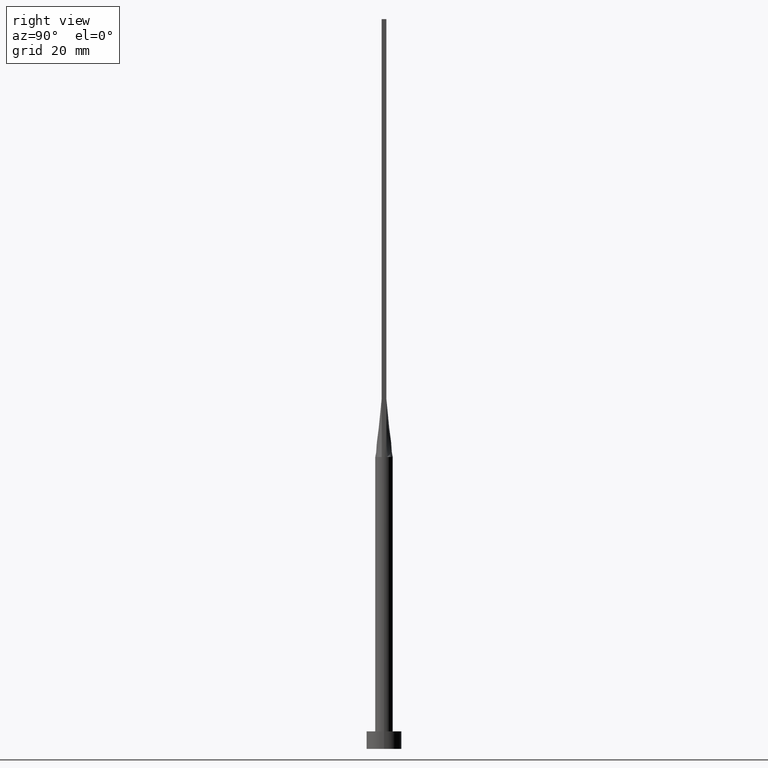
[diagram: clean part render]
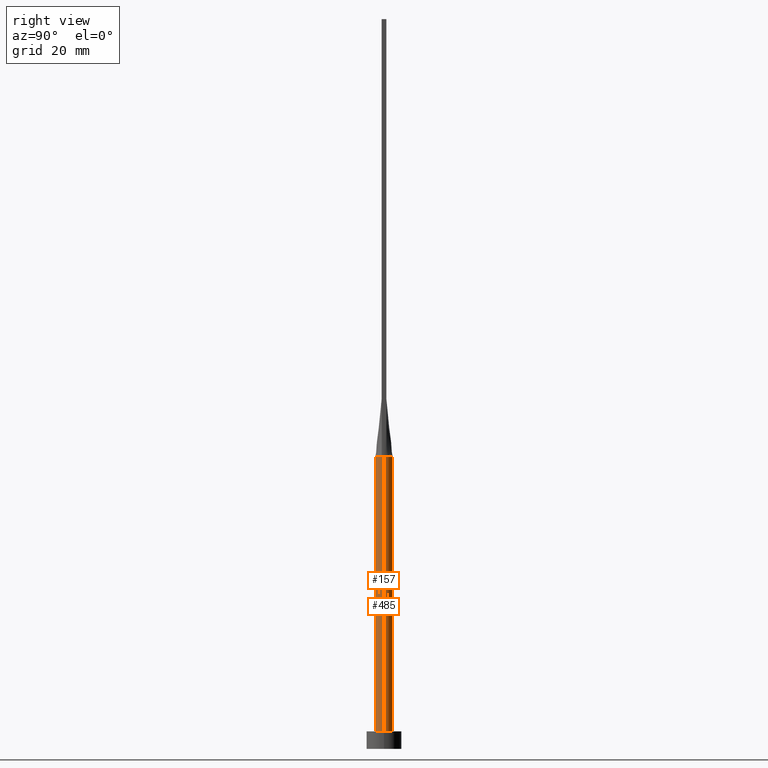
[diagram: same view with one multi-face feature highlighted, each face labeled with its STEP entity id]
A machine part, right view. The highlighted faces form ONE feature: a constant-radius fillet chain: 2 tangent blend faces with common blend radius 1.5 mm. The faces share edges in the B-rep.
Their STEP definitions:
[1] entity #485 (Cylinder):
#22 = VERTEX_POINT ( 'NONE', #225 ) ;
#32 = FACE_OUTER_BOUND ( 'NONE', #454, .T. ) ;
#35 = CARTESIAN_POINT ( 'NONE',  ( 1.442362338805188937, 0.4121038472597355895, 50.00000000000000000 ) ) ;
#39 = DIRECTION ( 'NONE',  ( -0.000000000000000000, -0.000000000000000000, -1.000000000000000000 ) ) ;
#44 = CARTESIAN_POINT ( 'NONE',  ( 1.114527776139990101, 1.017390422009413431, 50.00000000000000000 ) ) ;
#66 = CARTESIAN_POINT ( 'NONE',  ( 0.8665786268839186235, 1.235433898681765008, 50.00000000000000000 ) ) ;
#67 = LINE ( 'NONE', #310, #398 ) ;
#70 = CARTESIAN_POINT ( 'NONE',  ( -1.114527776139989212, 1.017390422009414319, 50.00000000000000711 ) ) ;
#81 = EDGE_CURVE ( 'NONE', #570, #22, #67, .T. ) ;
#88 = DIRECTION ( 'NONE',  ( 0.000000000000000000, 0.000000000000000000, 1.000000000000000000 ) ) ;
#98 = ORIENTED_EDGE ( 'NONE', *, *, #410, .F. ) ;
#99 = EDGE_CURVE ( 'NONE', #543, #116, #134, .T. ) ;
#114 = CARTESIAN_POINT ( 'NONE',  ( -1.442387148345315895, 0.4121110244020492197, 50.00000000000000000 ) ) ;
#116 = VERTEX_POINT ( 'NONE', #361 ) ;
#118 = CARTESIAN_POINT ( 'NONE',  ( 0.000000000000000000, 0.000000000000000000, 50.00000000000000000 ) ) ;
#125 = DIRECTION ( 'NONE',  ( -1.000000000000000000, 0.000000000000000000, 0.000000000000000000 ) ) ;
#126 = DIRECTION ( 'NONE',  ( -0.000000000000000000, -0.000000000000000000, -1.000000000000000000 ) ) ;
#129 = CARTESIAN_POINT ( 'NONE',  ( -1.442387148345315895, 0.4121110244020492197, 50.00000000000000000 ) ) ;
#134 = CIRCLE ( 'NONE', #459, 1.500000000000000222 ) ;
#146 = CIRCLE ( 'NONE', #360, 1.500000000000000222 ) ;
#161 = DIRECTION ( 'NONE',  ( 1.000000000000000000, 0.000000000000000000, 0.000000000000000000 ) ) ;
#163 = CARTESIAN_POINT ( 'NONE',  ( 0.1885753531885901724, 1.500000000000000666, 50.00000000000000711 ) ) ;
#167 = CARTESIAN_POINT ( 'NONE',  ( 0.000000000000000000, 0.000000000000000000, 3.000000000000000000 ) ) ;
#170 = VERTEX_POINT ( 'NONE', #364 ) ;
#171 = CARTESIAN_POINT ( 'NONE',  ( -1.500000000000000222, 0.000000000000000000, 50.00000000000000000 ) ) ;
#172 = ORIENTED_EDGE ( 'NONE', *, *, #572, .F. ) ;
#217 = CARTESIAN_POINT ( 'NONE',  ( 0.7158926189626808601, 1.330660769095147966, 49.99999999999999289 ) ) ;
#225 = CARTESIAN_POINT ( 'NONE',  ( 1.500000000000000222, 1.836970198721030181E-16, 3.000000000000000000 ) ) ;
#227 = CARTESIAN_POINT ( 'NONE',  ( -1.409267053536706671, 0.5276477295819163027, 50.00000000000000711 ) ) ;
#233 = CARTESIAN_POINT ( 'NONE',  ( 0.000000000000000000, 0.000000000000000000, 50.00000000000000000 ) ) ;
#242 = AXIS2_PLACEMENT_3D ( 'NONE', #118, #405, #161 ) ;
#253 = VERTEX_POINT ( 'NONE', #35 ) ;
#255 = CARTESIAN_POINT ( 'NONE',  ( -1.212111761082482975, 0.8950936653899578266, 50.00000000000000000 ) ) ;
#270 = CARTESIAN_POINT ( 'NONE',  ( 0.000000000000000000, 0.000000000000000000, 50.00000000000000000 ) ) ;
#273 = ORIENTED_EDGE ( 'NONE', *, *, #99, .F. ) ;
#304 = CARTESIAN_POINT ( 'NONE',  ( -0.7158926189626803049, 1.330660769095148410, 50.00000000000000000 ) ) ;
#310 = CARTESIAN_POINT ( 'NONE',  ( 1.500000000000000222, 1.836970198721030181E-16, 50.00000000000000000 ) ) ;
#317 = CARTESIAN_POINT ( 'NONE',  ( 1.409267053536706671, 0.5276477295819161917, 50.00000000000001421 ) ) ;
#336 = DIRECTION ( 'NONE',  ( 1.000000000000000000, 0.000000000000000000, 0.000000000000000000 ) ) ;
#337 = VECTOR ( 'NONE', #346, 1000.000000000000000 ) ;
#339 = CARTESIAN_POINT ( 'NONE',  ( -1.359280768448767329, 0.6502025712814717417, 50.00000000000000711 ) ) ;
#341 = CARTESIAN_POINT ( 'NONE',  ( -0.3767059690781846548, 1.463302066271692015, 50.00000000000000000 ) ) ;
#343 = DIRECTION ( 'NONE',  ( 0.000000000000000000, 0.000000000000000000, 1.000000000000000000 ) ) ;
#344 = CARTESIAN_POINT ( 'NONE',  ( 1.500000000000000000, -9.795443734464536283E-18, 50.00000000000000000 ) ) ;
#346 = DIRECTION ( 'NONE',  ( -0.000000000000000000, -0.000000000000000000, -1.000000000000000000 ) ) ;
#347 = AXIS2_PLACEMENT_3D ( 'NONE', #270, #39, #125 ) ;
#350 = EDGE_CURVE ( 'NONE', #22, #170, #146, .T. ) ;
#360 = AXIS2_PLACEMENT_3D ( 'NONE', #167, #343, #336 ) ;
#361 = CARTESIAN_POINT ( 'NONE',  ( -1.500000000000000222, 8.735352324927310277E-17, 50.00000000000000000 ) ) ;
#364 = CARTESIAN_POINT ( 'NONE',  ( -1.500000000000000222, 0.000000000000000000, 3.000000000000000000 ) ) ;
#390 = ORIENTED_EDGE ( 'NONE', *, *, #561, .F. ) ;
#398 = VECTOR ( 'NONE', #126, 1000.000000000000000 ) ;
#405 = DIRECTION ( 'NONE',  ( 0.000000000000000000, 0.000000000000000000, 1.000000000000000000 ) ) ;
#410 = EDGE_CURVE ( 'NONE', #116, #170, #535, .T. ) ;
#447 = CYLINDRICAL_SURFACE ( 'NONE', #347, 1.500000000000000222 ) ;
#449 = DIRECTION ( 'NONE',  ( 1.000000000000000000, 0.000000000000000000, 0.000000000000000000 ) ) ;
#454 = EDGE_LOOP ( 'NONE', ( #172, #472, #490, #98, #273, #390 ) ) ;
#459 = AXIS2_PLACEMENT_3D ( 'NONE', #233, #88, #449 ) ;
#467 = CIRCLE ( 'NONE', #242, 1.500000000000000222 ) ;
#470 = CARTESIAN_POINT ( 'NONE',  ( 1.212111761082483197, 0.8950936653899574935, 50.00000000000000000 ) ) ;
#472 = ORIENTED_EDGE ( 'NONE', *, *, #81, .T. ) ;
#483 = CARTESIAN_POINT ( 'NONE',  ( 0.3767059690781852654, 1.463302066271692015, 50.00000000000001421 ) ) ;
#485 = ADVANCED_FACE ( 'NONE', ( #32 ), #447, .T. ) ;
#490 = ORIENTED_EDGE ( 'NONE', *, *, #350, .T. ) ;
#492 = CARTESIAN_POINT ( 'NONE',  ( 1.359280768448766663, 0.6502025712814714087, 50.00000000000000000 ) ) ;
#522 = CARTESIAN_POINT ( 'NONE',  ( -0.8665786268839184014, 1.235433898681765896, 50.00000000000001421 ) ) ;
#524 = B_SPLINE_CURVE_WITH_KNOTS ( 'NONE', 3,
 ( #568, #317, #492, #470, #44, #66, #217, #483, #163, #528, #341, #304, #522, #70, #255, #339, #227, #114 ),
 .UNSPECIFIED., .F., .F.,
 ( 4, 2, 2, 2, 2, 2, 2, 2, 4 ),
 ( 0.000000000000000000, 0.1250000000000000833, 0.2500000000000001665, 0.3750000000000001110, 0.5000000000000001110, 0.6250000000000002220, 0.7500000000000001110, 0.8750000000000001110, 1.000000000000000000 ),
 .UNSPECIFIED. ) ;
#528 = CARTESIAN_POINT ( 'NONE',  ( -0.1885753531885899226, 1.500000000000000888, 50.00000000000001421 ) ) ;
#535 = LINE ( 'NONE', #171, #337 ) ;
#543 = VERTEX_POINT ( 'NONE', #129 ) ;
#561 = EDGE_CURVE ( 'NONE', #253, #543, #524, .T. ) ;
#568 = CARTESIAN_POINT ( 'NONE',  ( 1.442362338805188937, 0.4121038472597355895, 50.00000000000000000 ) ) ;
#570 = VERTEX_POINT ( 'NONE', #344 ) ;
#572 = EDGE_CURVE ( 'NONE', #570, #253, #467, .T. ) ;
[2] entity #157 (Cylinder):
#18 = AXIS2_PLACEMENT_3D ( 'NONE', #442, #533, #356 ) ;
#22 = VERTEX_POINT ( 'NONE', #225 ) ;
#29 = AXIS2_PLACEMENT_3D ( 'NONE', #560, #207, #63 ) ;
#42 = AXIS2_PLACEMENT_3D ( 'NONE', #451, #190, #203 ) ;
#60 = CARTESIAN_POINT ( 'NONE',  ( 0.000000000000000000, 0.000000000000000000, 3.000000000000000000 ) ) ;
#63 = DIRECTION ( 'NONE',  ( 1.000000000000000000, 0.000000000000000000, 0.000000000000000000 ) ) ;
#67 = LINE ( 'NONE', #310, #398 ) ;
#73 = DIRECTION ( 'NONE',  ( 1.000000000000000000, 0.000000000000000000, 0.000000000000000000 ) ) ;
#81 = EDGE_CURVE ( 'NONE', #570, #22, #67, .T. ) ;
#111 = DIRECTION ( 'NONE',  ( 1.000000000000000000, 5.329070518200751394E-15, 0.000000000000000000 ) ) ;
#116 = VERTEX_POINT ( 'NONE', #361 ) ;
#126 = DIRECTION ( 'NONE',  ( -0.000000000000000000, -0.000000000000000000, -1.000000000000000000 ) ) ;
#145 = ORIENTED_EDGE ( 'NONE', *, *, #292, .F. ) ;
#153 = EDGE_LOOP ( 'NONE', ( #501, #166, #287, #145, #247, #374 ) ) ;
#157 = ADVANCED_FACE ( 'NONE', ( #413 ), #548, .T. ) ;
#166 = ORIENTED_EDGE ( 'NONE', *, *, #496, .F. ) ;
#170 = VERTEX_POINT ( 'NONE', #364 ) ;
#171 = CARTESIAN_POINT ( 'NONE',  ( -1.500000000000000222, 0.000000000000000000, 50.00000000000000000 ) ) ;
#190 = DIRECTION ( 'NONE',  ( -0.000000000000000000, -0.000000000000000000, -1.000000000000000000 ) ) ;
#203 = DIRECTION ( 'NONE',  ( -1.000000000000000000, 0.000000000000000000, 0.000000000000000000 ) ) ;
#207 = DIRECTION ( 'NONE',  ( 0.000000000000000000, 0.000000000000000000, 1.000000000000000000 ) ) ;
#213 = CARTESIAN_POINT ( 'NONE',  ( 0.000000000000000000, 0.000000000000000000, 50.00000000000000000 ) ) ;
#216 = CARTESIAN_POINT ( 'NONE',  ( 1.442393550978850802, -0.4121129214357137083, 50.00000000000000000 ) ) ;
#225 = CARTESIAN_POINT ( 'NONE',  ( 1.500000000000000222, 1.836970198721030181E-16, 3.000000000000000000 ) ) ;
#247 = ORIENTED_EDGE ( 'NONE', *, *, #410, .T. ) ;
#251 = VERTEX_POINT ( 'NONE', #429 ) ;
#258 = CIRCLE ( 'NONE', #328, 1.500000000000000222 ) ;
#282 = EDGE_CURVE ( 'NONE', #170, #22, #258, .T. ) ;
#287 = ORIENTED_EDGE ( 'NONE', *, *, #457, .F. ) ;
#292 = EDGE_CURVE ( 'NONE', #116, #251, #427, .T. ) ;
#309 = VERTEX_POINT ( 'NONE', #216 ) ;
#310 = CARTESIAN_POINT ( 'NONE',  ( 1.500000000000000222, 1.836970198721030181E-16, 50.00000000000000000 ) ) ;
#328 = AXIS2_PLACEMENT_3D ( 'NONE', #60, #563, #73 ) ;
#337 = VECTOR ( 'NONE', #346, 1000.000000000000000 ) ;
#344 = CARTESIAN_POINT ( 'NONE',  ( 1.500000000000000000, -9.795443734464536283E-18, 50.00000000000000000 ) ) ;
#346 = DIRECTION ( 'NONE',  ( -0.000000000000000000, -0.000000000000000000, -1.000000000000000000 ) ) ;
#356 = DIRECTION ( 'NONE',  ( 1.000000000000000000, 0.000000000000000000, 0.000000000000000000 ) ) ;
#361 = CARTESIAN_POINT ( 'NONE',  ( -1.500000000000000222, 8.735352324927310277E-17, 50.00000000000000000 ) ) ;
#364 = CARTESIAN_POINT ( 'NONE',  ( -1.500000000000000222, 0.000000000000000000, 3.000000000000000000 ) ) ;
#374 = ORIENTED_EDGE ( 'NONE', *, *, #282, .T. ) ;
#398 = VECTOR ( 'NONE', #126, 1000.000000000000000 ) ;
#410 = EDGE_CURVE ( 'NONE', #116, #170, #535, .T. ) ;
#413 = FACE_OUTER_BOUND ( 'NONE', #153, .T. ) ;
#427 = CIRCLE ( 'NONE', #29, 1.500000000000000222 ) ;
#429 = CARTESIAN_POINT ( 'NONE',  ( -1.442368678646663405, -0.4121057215347019853, 50.00000000000000000 ) ) ;
#434 = CIRCLE ( 'NONE', #511, 1.500000000000000222 ) ;
#442 = CARTESIAN_POINT ( 'NONE',  ( 0.000000000000000000, 0.000000000000000000, 50.00000000000000000 ) ) ;
#451 = CARTESIAN_POINT ( 'NONE',  ( 0.000000000000000000, 0.000000000000000000, 50.00000000000000000 ) ) ;
#457 = EDGE_CURVE ( 'NONE', #251, #309, #578, .T. ) ;
#476 = DIRECTION ( 'NONE',  ( 0.000000000000000000, 0.000000000000000000, 1.000000000000000000 ) ) ;
#496 = EDGE_CURVE ( 'NONE', #309, #570, #434, .T. ) ;
#501 = ORIENTED_EDGE ( 'NONE', *, *, #81, .F. ) ;
#511 = AXIS2_PLACEMENT_3D ( 'NONE', #213, #476, #111 ) ;
#533 = DIRECTION ( 'NONE',  ( 0.000000000000000000, 0.000000000000000000, 1.000000000000000000 ) ) ;
#535 = LINE ( 'NONE', #171, #337 ) ;
#548 = CYLINDRICAL_SURFACE ( 'NONE', #42, 1.500000000000000222 ) ;
#560 = CARTESIAN_POINT ( 'NONE',  ( 0.000000000000000000, 0.000000000000000000, 50.00000000000000000 ) ) ;
#563 = DIRECTION ( 'NONE',  ( 0.000000000000000000, 0.000000000000000000, 1.000000000000000000 ) ) ;
#570 = VERTEX_POINT ( 'NONE', #344 ) ;
#578 = CIRCLE ( 'NONE', #18, 1.500000000000000222 ) ;